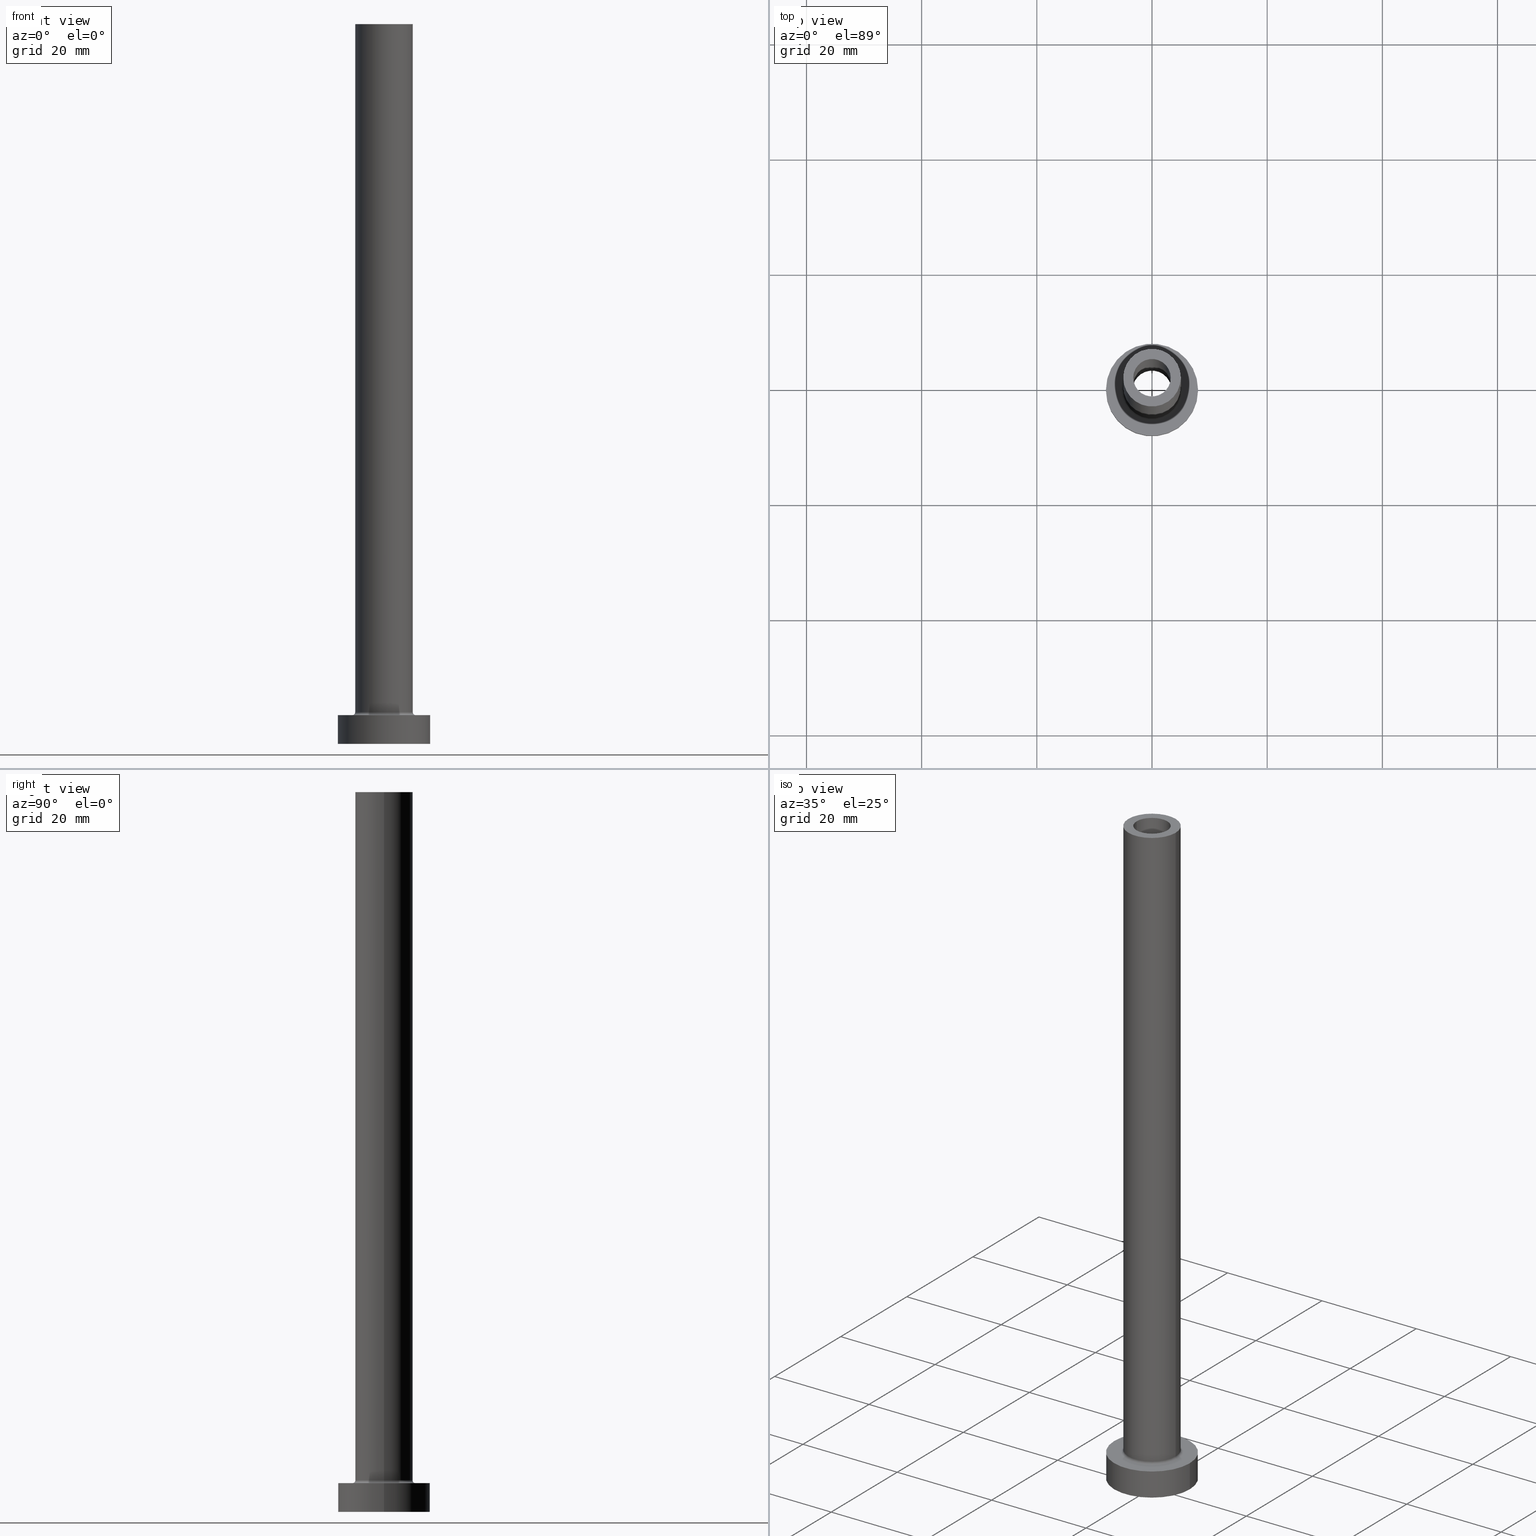
[diagram: canonical four-view strip — front | top / right | iso, engineering-drawing reading convention]
A machine part, canonical four-view strip (front | top / right | iso — engineering-drawing reading convention). The complete STEP part file that produces these views, byte-faithful:
ISO-10303-21;
HEADER;
FILE_DESCRIPTION (( 'STEP AP203' ),
    '1' );
FILE_NAME ('43da.STEP',
    '2023-02-13T14:03:32',
    ( '' ),
    ( '' ),
    'SwSTEP 2.0',
    'SolidWorks 2019',
    '' );
FILE_SCHEMA (( 'CONFIG_CONTROL_DESIGN' ));
ENDSEC;

DATA;
#1 = CYLINDRICAL_SURFACE ( 'NONE', #311, 8.000000000000000000 ) ;
#2 = ORIENTED_EDGE ( 'NONE', *, *, #31, .F. ) ;
#3 = DIRECTION ( 'NONE',  ( 1.000000000000000000, 0.000000000000000000, 0.000000000000000000 ) ) ;
#4 = CLOSED_SHELL ( 'NONE', ( #369, #194, #48, #175, #179, #340, #232, #296, #64, #58, #395, #149, #151, #241 ) ) ;
#5 = ORIENTED_EDGE ( 'NONE', *, *, #167, .F. ) ;
#6 = VERTEX_POINT ( 'NONE', #366 ) ;
#7 = DATE_TIME_ROLE ( 'creation_date' ) ;
#8 = DIRECTION ( 'NONE',  ( -0.000000000000000000, -0.000000000000000000, -1.000000000000000000 ) ) ;
#9 = FACE_OUTER_BOUND ( 'NONE', #137, .T. ) ;
#10 = DIRECTION ( 'NONE',  ( 1.000000000000000000, 0.000000000000000000, 0.000000000000000000 ) ) ;
#11 = EDGE_CURVE ( 'NONE', #438, #435, #459, .T. ) ;
#12 = DIRECTION ( 'NONE',  ( 0.000000000000000000, 0.000000000000000000, 1.000000000000000000 ) ) ;
#13 = CARTESIAN_POINT ( 'NONE',  ( 0.000000000000000000, 0.000000000000000000, 80.00000000000000000 ) ) ;
#14 = MANIFOLD_SOLID_BREP ( 'Odebrat vysunut�m4', #4 ) ;
#15 = FACE_OUTER_BOUND ( 'NONE', #71, .T. ) ;
#16 = LINE ( 'NONE', #300, #65 ) ;
#17 = AXIS2_PLACEMENT_3D ( 'NONE', #42, #306, #113 ) ;
#18 =( LENGTH_UNIT ( ) NAMED_UNIT ( * ) SI_UNIT ( .MILLI., .METRE. ) );
#19 = DIRECTION ( 'NONE',  ( -0.000000000000000000, -0.000000000000000000, -1.000000000000000000 ) ) ;
#20 = DIRECTION ( 'NONE',  ( -1.000000000000000000, 1.224646799147351482E-16, 0.000000000000000000 ) ) ;
#21 = CIRCLE ( 'NONE', #190, 3.399999999999999911 ) ;
#22 = CARTESIAN_POINT ( 'NONE',  ( 3.250000000000000444, 3.980102097228897245E-16, 125.0000000000000000 ) ) ;
#23 = CC_DESIGN_APPROVAL ( #111, ( #372 ) ) ;
#24 = ORIENTED_EDGE ( 'NONE', *, *, #430, .T. ) ;
#25 = CIRCLE ( 'NONE', #51, 3.250000000000000444 ) ;
#26 = EDGE_CURVE ( 'NONE', #174, #435, #39, .T. ) ;
#27 = VECTOR ( 'NONE', #8, 1000.000000000000000 ) ;
#28 = DIRECTION ( 'NONE',  ( -1.000000000000000000, 0.000000000000000000, 0.000000000000000000 ) ) ;
#29 = PLANE ( 'NONE',  #418 ) ;
#30 = EDGE_LOOP ( 'NONE', ( #133, #74, #24, #108 ) ) ;
#31 = EDGE_CURVE ( 'NONE', #280, #182, #247, .T. ) ;
#32 = DIRECTION ( 'NONE',  ( 1.000000000000000000, 0.000000000000000000, 0.000000000000000000 ) ) ;
#33 = DIRECTION ( 'NONE',  ( 1.000000000000000000, 0.000000000000000000, 0.000000000000000000 ) ) ;
#34 = CIRCLE ( 'NONE', #97, 3.250000000000000444 ) ;
#35 = LOCAL_TIME ( 15, 3, 32.00000000000000000, #257 ) ;
#36 = FACE_OUTER_BOUND ( 'NONE', #140, .T. ) ;
#37 = ORIENTED_EDGE ( 'NONE', *, *, #392, .T. ) ;
#38 = CARTESIAN_POINT ( 'NONE',  ( 0.000000000000000000, 0.000000000000000000, 125.0000000000000000 ) ) ;
#39 = LINE ( 'NONE', #291, #255 ) ;
#40 = ORIENTED_EDGE ( 'NONE', *, *, #26, .F. ) ;
#41 = AXIS2_PLACEMENT_3D ( 'NONE', #13, #450, #164 ) ;
#42 = CARTESIAN_POINT ( 'NONE',  ( 0.000000000000000000, 0.000000000000000000, 80.00000000000000000 ) ) ;
#43 = PRODUCT_DEFINITION_FORMATION_WITH_SPECIFIED_SOURCE ( 'LIBOVOLN�', '', #121, .NOT_KNOWN. ) ;
#44 = CARTESIAN_POINT ( 'NONE',  ( 0.000000000000000000, 0.000000000000000000, 0.000000000000000000 ) ) ;
#45 = DIRECTION ( 'NONE',  ( 0.000000000000000000, 0.000000000000000000, -1.000000000000000000 ) ) ;
#46 = DIRECTION ( 'NONE',  ( 1.000000000000000000, 0.000000000000000000, -0.000000000000000000 ) ) ;
#47 = CARTESIAN_POINT ( 'NONE',  ( 0.000000000000000000, 0.000000000000000000, 125.0000000000000000 ) ) ;
#48 = ADVANCED_FACE ( 'NONE', ( #109 ), #423, .F. ) ;
#49 = DIRECTION ( 'NONE',  ( 0.000000000000000000, 0.000000000000000000, 1.000000000000000000 ) ) ;
#50 = COORDINATED_UNIVERSAL_TIME_OFFSET ( 1, 0, .AHEAD. ) ;
#51 = AXIS2_PLACEMENT_3D ( 'NONE', #114, #228, #413 ) ;
#52 = CARTESIAN_POINT ( 'NONE',  ( 8.000000000000000000, 9.797174393178825657E-16, 0.000000000000000000 ) ) ;
#53 = DIRECTION ( 'NONE',  ( -0.000000000000000000, -0.000000000000000000, -1.000000000000000000 ) ) ;
#54 = CIRCLE ( 'NONE', #202, 5.500000000000000000 ) ;
#55 = PERSON_AND_ORGANIZATION ( #239, #242 ) ;
#56 = CARTESIAN_POINT ( 'NONE',  ( 0.000000000000000000, 0.000000000000000000, 5.000000000000000000 ) ) ;
#57 = DIRECTION ( 'NONE',  ( 1.000000000000000000, 0.000000000000000000, 0.000000000000000000 ) ) ;
#58 = ADVANCED_FACE ( 'NONE', ( #233, #298 ), #419, .T. ) ;
#59 = CARTESIAN_POINT ( 'NONE',  ( 0.000000000000000000, 0.000000000000000000, 125.0000000000000000 ) ) ;
#60 = CALENDAR_DATE ( 2023, 13, 2 ) ;
#61 = CC_DESIGN_PERSON_AND_ORGANIZATION_ASSIGNMENT ( #379, #404, ( #131 ) ) ;
#62 = PERSON_AND_ORGANIZATION_ROLE ( 'design_supplier' ) ;
#63 = EDGE_LOOP ( 'NONE', ( #185, #322, #219, #103 ) ) ;
#64 = ADVANCED_FACE ( 'NONE', ( #229 ), #333, .T. ) ;
#65 = VECTOR ( 'NONE', #19, 1000.000000000000000 ) ;
#66 = ORIENTED_EDGE ( 'NONE', *, *, #146, .F. ) ;
#67 = LOCAL_TIME ( 15, 3, 32.00000000000000000, #50 ) ;
#68 = ORIENTED_EDGE ( 'NONE', *, *, #411, .F. ) ;
#69 = ORIENTED_EDGE ( 'NONE', *, *, #365, .F. ) ;
#70 = FACE_OUTER_BOUND ( 'NONE', #30, .T. ) ;
#71 = EDGE_LOOP ( 'NONE', ( #68, #69, #294, #66 ) ) ;
#72 = AXIS2_PLACEMENT_3D ( 'NONE', #231, #383, #297 ) ;
#73 = DIRECTION ( 'NONE',  ( 1.000000000000000000, 0.000000000000000000, 0.000000000000000000 ) ) ;
#74 = ORIENTED_EDGE ( 'NONE', *, *, #86, .T. ) ;
#75 = DIRECTION ( 'NONE',  ( -1.000000000000000000, 0.000000000000000000, 0.000000000000000000 ) ) ;
#76 = ORIENTED_EDGE ( 'NONE', *, *, #31, .T. ) ;
#77 = PERSON_AND_ORGANIZATION_ROLE ( 'creator' ) ;
#78 = CARTESIAN_POINT ( 'NONE',  ( 3.250000000000000444, 3.980102097228897245E-16, 80.00000000000000000 ) ) ;
#79 = EDGE_LOOP ( 'NONE', ( #236, #461, #152, #107 ) ) ;
#80 = AXIS2_PLACEMENT_3D ( 'NONE', #354, #453, #28 ) ;
#81 = DATE_AND_TIME ( #374, #362 ) ;
#82 = CC_DESIGN_APPROVAL ( #183, ( #131 ) ) ;
#83 = PLANE ( 'NONE',  #388 ) ;
#84 = EDGE_CURVE ( 'NONE', #187, #456, #208, .T. ) ;
#85 = DIRECTION ( 'NONE',  ( -0.000000000000000000, -0.000000000000000000, -1.000000000000000000 ) ) ;
#86 = EDGE_CURVE ( 'NONE', #187, #212, #25, .T. ) ;
#87 = EDGE_CURVE ( 'NONE', #112, #458, #264, .T. ) ;
#88 = DIRECTION ( 'NONE',  ( 0.000000000000000000, 0.000000000000000000, 1.000000000000000000 ) ) ;
#89 = DIRECTION ( 'NONE',  ( 1.000000000000000000, 0.000000000000000000, 0.000000000000000000 ) ) ;
#90 = CYLINDRICAL_SURFACE ( 'NONE', #230, 5.000000000000000000 ) ;
#91 = APPROVAL_DATE_TIME ( #305, #183 ) ;
#92 = CIRCLE ( 'NONE', #310, 5.500000000000000000 ) ;
#93 = LINE ( 'NONE', #153, #275 ) ;
#94 = FACE_OUTER_BOUND ( 'NONE', #96, .T. ) ;
#95 = CARTESIAN_POINT ( 'NONE',  ( 0.000000000000000000, 0.000000000000000000, 5.000000000000000000 ) ) ;
#96 = EDGE_LOOP ( 'NONE', ( #406, #357 ) ) ;
#97 = AXIS2_PLACEMENT_3D ( 'NONE', #218, #367, #73 ) ;
#98 = ORIENTED_EDGE ( 'NONE', *, *, #87, .F. ) ;
#99 = APPROVAL_PERSON_ORGANIZATION ( #55, #432, #226 ) ;
#100 = CARTESIAN_POINT ( 'NONE',  ( 0.000000000000000000, 0.000000000000000000, 125.0000000000000000 ) ) ;
#101 = DIRECTION ( 'NONE',  ( 0.000000000000000000, 0.000000000000000000, 1.000000000000000000 ) ) ;
#102 = EDGE_LOOP ( 'NONE', ( #40, #394, #209, #245 ) ) ;
#103 = ORIENTED_EDGE ( 'NONE', *, *, #170, .F. ) ;
#104 = TOROIDAL_SURFACE ( 'NONE', #72, 5.500000000000000000, 0.5000000000000000000 ) ;
#105 = ORIENTED_EDGE ( 'NONE', *, *, #197, .T. ) ;
#106 = EDGE_CURVE ( 'NONE', #174, #454, #334, .T. ) ;
#107 = ORIENTED_EDGE ( 'NONE', *, *, #430, .F. ) ;
#108 = ORIENTED_EDGE ( 'NONE', *, *, #343, .F. ) ;
#109 = FACE_OUTER_BOUND ( 'NONE', #63, .T. ) ;
#110 = DATE_AND_TIME ( #201, #67 ) ;
#111 = APPROVAL ( #130, 'NEUR�EN�' ) ;
#112 = VERTEX_POINT ( 'NONE', #304 ) ;
#113 = DIRECTION ( 'NONE',  ( 1.000000000000000000, 0.000000000000000000, 0.000000000000000000 ) ) ;
#114 = CARTESIAN_POINT ( 'NONE',  ( 0.000000000000000000, 0.000000000000000000, 125.0000000000000000 ) ) ;
#115 = AXIS2_PLACEMENT_3D ( 'NONE', #206, #410, #57 ) ;
#116 = MECHANICAL_CONTEXT ( 'NONE', #420, 'mechanical' ) ;
#117 = DIRECTION ( 'NONE',  ( 0.000000000000000000, 0.000000000000000000, -1.000000000000000000 ) ) ;
#118 = AXIS2_PLACEMENT_3D ( 'NONE', #198, #253, #308 ) ;
#119 = CYLINDRICAL_SURFACE ( 'NONE', #391, 8.000000000000000000 ) ;
#120 = DIRECTION ( 'NONE',  ( 0.000000000000000000, 0.000000000000000000, 1.000000000000000000 ) ) ;
#121 = PRODUCT ( '43da', '43da', '', ( #116 ) ) ;
#122 = CARTESIAN_POINT ( 'NONE',  ( 5.000000000000000000, 6.123233995736766282E-16, 125.0000000000000000 ) ) ;
#123 = DIRECTION ( 'NONE',  ( -0.000000000000000000, -0.000000000000000000, -1.000000000000000000 ) ) ;
#124 = AXIS2_PLACEMENT_3D ( 'NONE', #436, #323, #3 ) ;
#125 = FACE_OUTER_BOUND ( 'NONE', #79, .T. ) ;
#126 = CARTESIAN_POINT ( 'NONE',  ( 5.500000000000000000, 0.000000000000000000, 5.500000000000005329 ) ) ;
#127 = CIRCLE ( 'NONE', #345, 8.000000000000000000 ) ;
#128 = DATE_AND_TIME ( #452, #425 ) ;
#129 = CARTESIAN_POINT ( 'NONE',  ( 0.000000000000000000, 0.000000000000000000, 0.000000000000000000 ) ) ;
#130 = APPROVAL_STATUS ( 'not_yet_approved' ) ;
#131 = PRODUCT_DEFINITION ( 'NEZN�M�', '', #43, #440 ) ;
#132 = DIRECTION ( 'NONE',  ( 1.000000000000000000, 0.000000000000000000, 0.000000000000000000 ) ) ;
#133 = ORIENTED_EDGE ( 'NONE', *, *, #84, .F. ) ;
#134 = ADVANCED_BREP_SHAPE_REPRESENTATION ( '43da', ( #14, #451 ), #266 ) ;
#135 = DIRECTION ( 'NONE',  ( 0.000000000000000000, 0.000000000000000000, 1.000000000000000000 ) ) ;
#136 = ORIENTED_EDGE ( 'NONE', *, *, #254, .T. ) ;
#137 = EDGE_LOOP ( 'NONE', ( #2, #145, #248, #5 ) ) ;
#138 = DIRECTION ( 'NONE',  ( 0.000000000000000000, 0.000000000000000000, -1.000000000000000000 ) ) ;
#139 = CIRCLE ( 'NONE', #238, 3.399999999999999911 ) ;
#140 = EDGE_LOOP ( 'NONE', ( #281, #189, #400, #270 ) ) ;
#141 = AXIS2_PLACEMENT_3D ( 'NONE', #56, #205, #331 ) ;
#142 = DIRECTION ( 'NONE',  ( 1.000000000000000000, 0.000000000000000000, -0.000000000000000000 ) ) ;
#143 = EDGE_LOOP ( 'NONE', ( #317, #221 ) ) ;
#144 = DIRECTION ( 'NONE',  ( -0.000000000000000000, -0.000000000000000000, -1.000000000000000000 ) ) ;
#145 = ORIENTED_EDGE ( 'NONE', *, *, #350, .T. ) ;
#146 = EDGE_CURVE ( 'NONE', #328, #6, #92, .T. ) ;
#147 = ORIENTED_EDGE ( 'NONE', *, *, #422, .F. ) ;
#148 = EDGE_CURVE ( 'NONE', #252, #431, #16, .T. ) ;
#149 = ADVANCED_FACE ( 'NONE', ( #442 ), #373, .F. ) ;
#150 = VECTOR ( 'NONE', #117, 1000.000000000000000 ) ;
#151 = ADVANCED_FACE ( 'NONE', ( #161, #94 ), #83, .F. ) ;
#152 = ORIENTED_EDGE ( 'NONE', *, *, #269, .F. ) ;
#153 = CARTESIAN_POINT ( 'NONE',  ( -3.399999999999999911, 0.000000000000000000, 89.61665222413704157 ) ) ;
#154 = CARTESIAN_POINT ( 'NONE',  ( 0.000000000000000000, 0.000000000000000000, 125.0000000000000000 ) ) ;
#155 = LINE ( 'NONE', #380, #150 ) ;
#156 = DIRECTION ( 'NONE',  ( -1.000000000000000000, 0.000000000000000000, 0.000000000000000000 ) ) ;
#157 = APPROVAL_STATUS ( 'not_yet_approved' ) ;
#158 = APPROVAL_PERSON_ORGANIZATION ( #235, #111, #387 ) ;
#159 = CC_DESIGN_APPROVAL ( #432, ( #43 ) ) ;
#160 = CARTESIAN_POINT ( 'NONE',  ( 3.250000000000000444, 3.980102097228897245E-16, 125.0000000000000000 ) ) ;
#161 = FACE_BOUND ( 'NONE', #143, .T. ) ;
#162 = PRODUCT_DEFINITION_SHAPE ( 'NONE', 'NONE',  #131 ) ;
#163 = DIRECTION ( 'NONE',  ( 0.000000000000000000, 0.000000000000000000, -1.000000000000000000 ) ) ;
#164 = DIRECTION ( 'NONE',  ( 1.000000000000000000, 0.000000000000000000, 0.000000000000000000 ) ) ;
#165 = CC_DESIGN_PERSON_AND_ORGANIZATION_ASSIGNMENT ( #382, #407, ( #121 ) ) ;
#166 = APPROVAL_PERSON_ORGANIZATION ( #262, #183, #299 ) ;
#167 = EDGE_CURVE ( 'NONE', #182, #314, #377, .T. ) ;
#168 = VERTEX_POINT ( 'NONE', #268 ) ;
#169 = SECURITY_CLASSIFICATION_LEVEL ( 'unclassified' ) ;
#170 = EDGE_CURVE ( 'NONE', #168, #6, #181, .T. ) ;
#171 = EDGE_LOOP ( 'NONE', ( #147, #352 ) ) ;
#172 = VECTOR ( 'NONE', #204, 1000.000000000000000 ) ;
#173 = DIRECTION ( 'NONE',  ( 0.000000000000000000, 0.000000000000000000, 1.000000000000000000 ) ) ;
#174 = VERTEX_POINT ( 'NONE', #332 ) ;
#175 = ADVANCED_FACE ( 'NONE', ( #9 ), #90, .T. ) ;
#176 = ORIENTED_EDGE ( 'NONE', *, *, #26, .T. ) ;
#177 = CARTESIAN_POINT ( 'NONE',  ( 0.000000000000000000, 0.000000000000000000, 0.000000000000000000 ) ) ;
#178 = EDGE_LOOP ( 'NONE', ( #368, #363, #105, #98 ) ) ;
#179 = ADVANCED_FACE ( 'NONE', ( #448 ), #119, .T. ) ;
#180 = CARTESIAN_POINT ( 'NONE',  ( 0.000000000000000000, 0.000000000000000000, 125.0000000000000000 ) ) ;
#181 = CIRCLE ( 'NONE', #325, 0.5000000000000004441 ) ;
#182 = VERTEX_POINT ( 'NONE', #341 ) ;
#183 = APPROVAL ( #157, 'NEUR�EN�' ) ;
#184 = CARTESIAN_POINT ( 'NONE',  ( 0.000000000000000000, 0.000000000000000000, 5.000000000000000000 ) ) ;
#185 = ORIENTED_EDGE ( 'NONE', *, *, #392, .F. ) ;
#186 = EDGE_CURVE ( 'NONE', #454, #174, #21, .T. ) ;
#187 = VERTEX_POINT ( 'NONE', #22 ) ;
#188 = DIRECTION ( 'NONE',  ( -0.000000000000000000, -0.000000000000000000, -1.000000000000000000 ) ) ;
#189 = ORIENTED_EDGE ( 'NONE', *, *, #403, .F. ) ;
#190 = AXIS2_PLACEMENT_3D ( 'NONE', #455, #101, #351 ) ;
#191 = AXIS2_PLACEMENT_3D ( 'NONE', #338, #303, #20 ) ;
#192 = CARTESIAN_POINT ( 'NONE',  ( -3.399999999999999911, 0.000000000000000000, 0.000000000000000000 ) ) ;
#193 = ORIENTED_EDGE ( 'NONE', *, *, #276, .T. ) ;
#194 = ADVANCED_FACE ( 'NONE', ( #312 ), #346, .F. ) ;
#195 = COORDINATED_UNIVERSAL_TIME_OFFSET ( 1, 0, .AHEAD. ) ;
#196 = DIRECTION ( 'NONE',  ( 0.000000000000000000, 0.000000000000000000, -1.000000000000000000 ) ) ;
#197 = EDGE_CURVE ( 'NONE', #431, #458, #240, .T. ) ;
#198 = CARTESIAN_POINT ( 'NONE',  ( 0.000000000000000000, 0.000000000000000000, 5.500000000000005329 ) ) ;
#199 = CC_DESIGN_DATE_AND_TIME_ASSIGNMENT ( #128, #344, ( #372 ) ) ;
#200 = DIRECTION ( 'NONE',  ( -1.000000000000000000, 0.000000000000000000, 0.000000000000000000 ) ) ;
#201 = CALENDAR_DATE ( 2023, 13, 2 ) ;
#202 = AXIS2_PLACEMENT_3D ( 'NONE', #361, #188, #434 ) ;
#203 = CARTESIAN_POINT ( 'NONE',  ( -3.399999999999999911, 0.000000000000000000, 80.00000000000000000 ) ) ;
#204 = DIRECTION ( 'NONE',  ( 0.000000000000000000, 0.000000000000000000, -1.000000000000000000 ) ) ;
#205 = DIRECTION ( 'NONE',  ( 0.000000000000000000, 0.000000000000000000, 1.000000000000000000 ) ) ;
#206 = CARTESIAN_POINT ( 'NONE',  ( 0.000000000000000000, 0.000000000000000000, 5.500000000000005329 ) ) ;
#207 = COORDINATED_UNIVERSAL_TIME_OFFSET ( 1, 0, .AHEAD. ) ;
#208 = LINE ( 'NONE', #160, #172 ) ;
#209 = ORIENTED_EDGE ( 'NONE', *, *, #378, .T. ) ;
#210 = AXIS2_PLACEMENT_3D ( 'NONE', #44, #217, #33 ) ;
#211 = EDGE_CURVE ( 'NONE', #212, #187, #342, .T. ) ;
#212 = VERTEX_POINT ( 'NONE', #277 ) ;
#213 = PERSON_AND_ORGANIZATION_ROLE ( 'classification_officer' ) ;
#214 = APPROVAL_DATE_TIME ( #349, #111 ) ;
#215 = EDGE_LOOP ( 'NONE', ( #355, #289 ) ) ;
#216 = CARTESIAN_POINT ( 'NONE',  ( 0.000000000000000000, 0.000000000000000000, 0.000000000000000000 ) ) ;
#217 = DIRECTION ( 'NONE',  ( -0.000000000000000000, -0.000000000000000000, -1.000000000000000000 ) ) ;
#218 = CARTESIAN_POINT ( 'NONE',  ( 0.000000000000000000, 0.000000000000000000, 80.00000000000000000 ) ) ;
#219 = ORIENTED_EDGE ( 'NONE', *, *, #279, .F. ) ;
#220 = DIRECTION ( 'NONE',  ( 0.000000000000000000, 0.000000000000000000, 1.000000000000000000 ) ) ;
#221 = ORIENTED_EDGE ( 'NONE', *, *, #343, .T. ) ;
#222 =( NAMED_UNIT ( * ) PLANE_ANGLE_UNIT ( ) SI_UNIT ( $, .RADIAN. ) );
#223 = EDGE_LOOP ( 'NONE', ( #278, #347 ) ) ;
#224 = CIRCLE ( 'NONE', #446, 8.000000000000000000 ) ;
#225 = CARTESIAN_POINT ( 'NONE',  ( 0.000000000000000000, 0.000000000000000000, 80.00000000000000000 ) ) ;
#226 = APPROVAL_ROLE ( '' ) ;
#227 = DIRECTION ( 'NONE',  ( 1.000000000000000000, 0.000000000000000000, 0.000000000000000000 ) ) ;
#228 = DIRECTION ( 'NONE',  ( 0.000000000000000000, 0.000000000000000000, 1.000000000000000000 ) ) ;
#229 = FACE_OUTER_BOUND ( 'NONE', #402, .T. ) ;
#230 = AXIS2_PLACEMENT_3D ( 'NONE', #154, #307, #156 ) ;
#231 = CARTESIAN_POINT ( 'NONE',  ( 0.000000000000000000, 0.000000000000000000, 5.500000000000005329 ) ) ;
#232 = ADVANCED_FACE ( 'NONE', ( #318, #358 ), #293, .T. ) ;
#233 = FACE_BOUND ( 'NONE', #223, .T. ) ;
#234 = CARTESIAN_POINT ( 'NONE',  ( 0.000000000000000000, 0.000000000000000000, 89.61665222413704157 ) ) ;
#235 = PERSON_AND_ORGANIZATION ( #239, #242 ) ;
#236 = ORIENTED_EDGE ( 'NONE', *, *, #211, .T. ) ;
#237 = APPLICATION_CONTEXT ( 'configuration controlled 3d designs of mechanical parts and assemblies' ) ;
#238 = AXIS2_PLACEMENT_3D ( 'NONE', #216, #283, #32 ) ;
#239 = PERSON ( 'NEUR�EN�', 'NEUR�EN�', 'NEUR�EN�', ('NEUR�EN�'), ('NEUR�EN�'), ('NEUR�EN�') ) ;
#240 = CIRCLE ( 'NONE', #282, 8.000000000000000000 ) ;
#241 = ADVANCED_FACE ( 'NONE', ( #70 ), #244, .F. ) ;
#242 = ORGANIZATION ( 'NEUR�EN�', 'NEUR�EN�', '' ) ;
#243 = EDGE_LOOP ( 'NONE', ( #193, #76 ) ) ;
#244 = CYLINDRICAL_SURFACE ( 'NONE', #409, 3.250000000000000444 ) ;
#245 = ORIENTED_EDGE ( 'NONE', *, *, #11, .T. ) ;
#246 = CARTESIAN_POINT ( 'NONE',  ( -3.250000000000000444, 0.000000000000000000, 80.00000000000000000 ) ) ;
#247 = CIRCLE ( 'NONE', #124, 5.000000000000000000 ) ;
#248 = ORIENTED_EDGE ( 'NONE', *, *, #365, .T. ) ;
#249 = DIRECTION ( 'NONE',  ( 1.000000000000000000, 0.000000000000000000, -0.000000000000000000 ) ) ;
#250 = PERSON_AND_ORGANIZATION ( #239, #242 ) ;
#251 = DIRECTION ( 'NONE',  ( 1.000000000000000000, 0.000000000000000000, 0.000000000000000000 ) ) ;
#252 = VERTEX_POINT ( 'NONE', #401 ) ;
#253 = DIRECTION ( 'NONE',  ( 0.000000000000000000, 0.000000000000000000, 1.000000000000000000 ) ) ;
#254 = EDGE_CURVE ( 'NONE', #435, #438, #139, .T. ) ;
#255 = VECTOR ( 'NONE', #287, 1000.000000000000000 ) ;
#256 = CIRCLE ( 'NONE', #118, 5.000000000000000000 ) ;
#257 = COORDINATED_UNIVERSAL_TIME_OFFSET ( 1, 0, .AHEAD. ) ;
#258 = CARTESIAN_POINT ( 'NONE',  ( 0.000000000000000000, 0.000000000000000000, 5.000000000000000000 ) ) ;
#259 = CARTESIAN_POINT ( 'NONE',  ( 0.000000000000000000, 0.000000000000000000, 5.000000000000000000 ) ) ;
#260 = CALENDAR_DATE ( 2023, 13, 2 ) ;
#261 = DIRECTION ( 'NONE',  ( -1.000000000000000000, 0.000000000000000000, 0.000000000000000000 ) ) ;
#262 = PERSON_AND_ORGANIZATION ( #239, #242 ) ;
#263 = CARTESIAN_POINT ( 'NONE',  ( 0.000000000000000000, 0.000000000000000000, 5.500000000000005329 ) ) ;
#264 = LINE ( 'NONE', #385, #265 ) ;
#265 = VECTOR ( 'NONE', #53, 1000.000000000000000 ) ;
#266 =( GEOMETRIC_REPRESENTATION_CONTEXT ( 3 ) GLOBAL_UNCERTAINTY_ASSIGNED_CONTEXT ( ( #405 ) ) GLOBAL_UNIT_ASSIGNED_CONTEXT ( ( #18, #222, #337 ) ) REPRESENTATION_CONTEXT ( 'NONE', 'WORKASPACE' ) );
#267 = CARTESIAN_POINT ( 'NONE',  ( 3.399999999999999911, 4.163799117101000559E-16, 0.000000000000000000 ) ) ;
#268 = CARTESIAN_POINT ( 'NONE',  ( 5.000000000000000000, 6.123233995736766282E-16, 5.500000000000005329 ) ) ;
#269 = EDGE_CURVE ( 'NONE', #324, #456, #34, .T. ) ;
#270 = ORIENTED_EDGE ( 'NONE', *, *, #422, .T. ) ;
#271 = SHAPE_DEFINITION_REPRESENTATION ( #162, #134 ) ;
#272 = CC_DESIGN_DATE_AND_TIME_ASSIGNMENT ( #110, #7, ( #131 ) ) ;
#273 = AXIS2_PLACEMENT_3D ( 'NONE', #59, #120, #46 ) ;
#274 = AXIS2_PLACEMENT_3D ( 'NONE', #180, #437, #251 ) ;
#275 = VECTOR ( 'NONE', #45, 1000.000000000000000 ) ;
#276 = EDGE_CURVE ( 'NONE', #182, #280, #360, .T. ) ;
#277 = CARTESIAN_POINT ( 'NONE',  ( -3.250000000000000444, 0.000000000000000000, 125.0000000000000000 ) ) ;
#278 = ORIENTED_EDGE ( 'NONE', *, *, #211, .F. ) ;
#279 = EDGE_CURVE ( 'NONE', #6, #328, #54, .T. ) ;
#280 = VERTEX_POINT ( 'NONE', #290 ) ;
#281 = ORIENTED_EDGE ( 'NONE', *, *, #148, .F. ) ;
#282 = AXIS2_PLACEMENT_3D ( 'NONE', #129, #135, #132 ) ;
#283 = DIRECTION ( 'NONE',  ( -0.000000000000000000, -0.000000000000000000, -1.000000000000000000 ) ) ;
#284 = CC_DESIGN_SECURITY_CLASSIFICATION ( #372, ( #43 ) ) ;
#285 = ORIENTED_EDGE ( 'NONE', *, *, #186, .T. ) ;
#286 = CARTESIAN_POINT ( 'NONE',  ( -5.000000000000000000, 0.000000000000000000, 5.500000000000005329 ) ) ;
#287 = DIRECTION ( 'NONE',  ( 0.000000000000000000, 0.000000000000000000, -1.000000000000000000 ) ) ;
#288 = DIRECTION ( 'NONE',  ( -1.000000000000000000, 0.000000000000000000, 0.000000000000000000 ) ) ;
#289 = ORIENTED_EDGE ( 'NONE', *, *, #364, .T. ) ;
#290 = CARTESIAN_POINT ( 'NONE',  ( 5.000000000000000000, 6.123233995736766282E-16, 125.0000000000000000 ) ) ;
#291 = CARTESIAN_POINT ( 'NONE',  ( 3.399999999999999911, 4.163799117101000559E-16, 89.61665222413704157 ) ) ;
#292 = CARTESIAN_POINT ( 'NONE',  ( 0.000000000000000000, 0.000000000000000000, 0.000000000000000000 ) ) ;
#293 = PLANE ( 'NONE',  #315 ) ;
#294 = ORIENTED_EDGE ( 'NONE', *, *, #170, .T. ) ;
#295 = APPLICATION_PROTOCOL_DEFINITION ( 'international standard', 'config_control_design', 1994, #420 ) ;
#296 = ADVANCED_FACE ( 'NONE', ( #356, #319 ), #29, .F. ) ;
#297 = DIRECTION ( 'NONE',  ( 1.000000000000000000, 0.000000000000000000, 0.000000000000000000 ) ) ;
#298 = FACE_OUTER_BOUND ( 'NONE', #243, .T. ) ;
#299 = APPROVAL_ROLE ( '' ) ;
#300 = CARTESIAN_POINT ( 'NONE',  ( 8.000000000000000000, 9.797174393178825657E-16, 5.000000000000000000 ) ) ;
#301 = VECTOR ( 'NONE', #85, 1000.000000000000000 ) ;
#302 = APPROVAL_DATE_TIME ( #81, #432 ) ;
#303 = DIRECTION ( 'NONE',  ( 1.224646799147353207E-16, 1.000000000000000000, -0.000000000000000000 ) ) ;
#304 = CARTESIAN_POINT ( 'NONE',  ( -8.000000000000000000, 0.000000000000000000, 5.000000000000000000 ) ) ;
#305 = DATE_AND_TIME ( #260, #35 ) ;
#306 = DIRECTION ( 'NONE',  ( 0.000000000000000000, 0.000000000000000000, 1.000000000000000000 ) ) ;
#307 = DIRECTION ( 'NONE',  ( -0.000000000000000000, -0.000000000000000000, -1.000000000000000000 ) ) ;
#308 = DIRECTION ( 'NONE',  ( 1.000000000000000000, 0.000000000000000000, 0.000000000000000000 ) ) ;
#309 = CARTESIAN_POINT ( 'NONE',  ( -5.000000000000000000, 0.000000000000000000, 125.0000000000000000 ) ) ;
#310 = AXIS2_PLACEMENT_3D ( 'NONE', #95, #336, #339 ) ;
#311 = AXIS2_PLACEMENT_3D ( 'NONE', #321, #144, #288 ) ;
#312 = FACE_OUTER_BOUND ( 'NONE', #421, .T. ) ;
#313 = COORDINATED_UNIVERSAL_TIME_OFFSET ( 1, 0, .AHEAD. ) ;
#314 = VERTEX_POINT ( 'NONE', #286 ) ;
#315 = AXIS2_PLACEMENT_3D ( 'NONE', #184, #220, #249 ) ;
#316 = AXIS2_PLACEMENT_3D ( 'NONE', #47, #163, #416 ) ;
#317 = ORIENTED_EDGE ( 'NONE', *, *, #269, .T. ) ;
#318 = FACE_BOUND ( 'NONE', #398, .T. ) ;
#319 = FACE_OUTER_BOUND ( 'NONE', #171, .T. ) ;
#320 = CIRCLE ( 'NONE', #389, 5.000000000000000000 ) ;
#321 = CARTESIAN_POINT ( 'NONE',  ( 0.000000000000000000, 0.000000000000000000, 5.000000000000000000 ) ) ;
#322 = ORIENTED_EDGE ( 'NONE', *, *, #411, .T. ) ;
#323 = DIRECTION ( 'NONE',  ( 0.000000000000000000, 0.000000000000000000, 1.000000000000000000 ) ) ;
#324 = VERTEX_POINT ( 'NONE', #246 ) ;
#325 = AXIS2_PLACEMENT_3D ( 'NONE', #126, #447, #196 ) ;
#326 = ORIENTED_EDGE ( 'NONE', *, *, #11, .F. ) ;
#327 = CIRCLE ( 'NONE', #17, 3.250000000000000444 ) ;
#328 = VERTEX_POINT ( 'NONE', #397 ) ;
#329 = PRODUCT_RELATED_PRODUCT_CATEGORY ( 'detail', '', ( #121 ) ) ;
#330 = ORIENTED_EDGE ( 'NONE', *, *, #378, .F. ) ;
#331 = DIRECTION ( 'NONE',  ( 1.000000000000000000, 0.000000000000000000, 0.000000000000000000 ) ) ;
#332 = CARTESIAN_POINT ( 'NONE',  ( 3.399999999999999911, 4.163799117101000559E-16, 80.00000000000000000 ) ) ;
#333 = CYLINDRICAL_SURFACE ( 'NONE', #399, 5.000000000000000000 ) ;
#334 = CIRCLE ( 'NONE', #41, 3.399999999999999911 ) ;
#335 = CARTESIAN_POINT ( 'NONE',  ( -8.000000000000000000, 0.000000000000000000, 0.000000000000000000 ) ) ;
#336 = DIRECTION ( 'NONE',  ( -0.000000000000000000, -0.000000000000000000, -1.000000000000000000 ) ) ;
#337 =( NAMED_UNIT ( * ) SI_UNIT ( $, .STERADIAN. ) SOLID_ANGLE_UNIT ( ) );
#338 = CARTESIAN_POINT ( 'NONE',  ( -5.500000000000000000, 6.735557395310442023E-16, 5.500000000000005329 ) ) ;
#339 = DIRECTION ( 'NONE',  ( 1.000000000000000000, 0.000000000000000000, 0.000000000000000000 ) ) ;
#340 = ADVANCED_FACE ( 'NONE', ( #36 ), #1, .T. ) ;
#341 = CARTESIAN_POINT ( 'NONE',  ( -5.000000000000000000, 0.000000000000000000, 125.0000000000000000 ) ) ;
#342 = CIRCLE ( 'NONE', #444, 3.250000000000000444 ) ;
#343 = EDGE_CURVE ( 'NONE', #456, #324, #327, .T. ) ;
#344 = DATE_TIME_ROLE ( 'classification_date' ) ;
#345 = AXIS2_PLACEMENT_3D ( 'NONE', #258, #443, #227 ) ;
#346 = CYLINDRICAL_SURFACE ( 'NONE', #80, 3.399999999999999911 ) ;
#347 = ORIENTED_EDGE ( 'NONE', *, *, #86, .F. ) ;
#348 = ORIENTED_EDGE ( 'NONE', *, *, #167, .T. ) ;
#349 = DATE_AND_TIME ( #60, #429 ) ;
#350 = EDGE_CURVE ( 'NONE', #280, #168, #414, .T. ) ;
#351 = DIRECTION ( 'NONE',  ( 1.000000000000000000, 0.000000000000000000, 0.000000000000000000 ) ) ;
#352 = ORIENTED_EDGE ( 'NONE', *, *, #197, .F. ) ;
#353 = CIRCLE ( 'NONE', #141, 8.000000000000000000 ) ;
#354 = CARTESIAN_POINT ( 'NONE',  ( 0.000000000000000000, 0.000000000000000000, 89.61665222413704157 ) ) ;
#355 = ORIENTED_EDGE ( 'NONE', *, *, #403, .T. ) ;
#356 = FACE_BOUND ( 'NONE', #359, .T. ) ;
#357 = ORIENTED_EDGE ( 'NONE', *, *, #106, .F. ) ;
#358 = FACE_OUTER_BOUND ( 'NONE', #215, .T. ) ;
#359 = EDGE_LOOP ( 'NONE', ( #326, #390 ) ) ;
#360 = CIRCLE ( 'NONE', #274, 5.000000000000000000 ) ;
#361 = CARTESIAN_POINT ( 'NONE',  ( 0.000000000000000000, 0.000000000000000000, 5.000000000000000000 ) ) ;
#362 = LOCAL_TIME ( 15, 3, 32.00000000000000000, #195 ) ;
#363 = ORIENTED_EDGE ( 'NONE', *, *, #148, .T. ) ;
#364 = EDGE_CURVE ( 'NONE', #252, #112, #127, .T. ) ;
#365 = EDGE_CURVE ( 'NONE', #168, #314, #320, .T. ) ;
#366 = CARTESIAN_POINT ( 'NONE',  ( 5.500000000000000000, 0.000000000000000000, 5.000000000000002665 ) ) ;
#367 = DIRECTION ( 'NONE',  ( 0.000000000000000000, 0.000000000000000000, 1.000000000000000000 ) ) ;
#368 = ORIENTED_EDGE ( 'NONE', *, *, #364, .F. ) ;
#369 = ADVANCED_FACE ( 'NONE', ( #125 ), #408, .F. ) ;
#370 = PERSON_AND_ORGANIZATION ( #239, #242 ) ;
#371 = ORIENTED_EDGE ( 'NONE', *, *, #350, .F. ) ;
#372 = SECURITY_CLASSIFICATION ( '', '', #169 ) ;
#373 = CYLINDRICAL_SURFACE ( 'NONE', #428, 3.399999999999999911 ) ;
#374 = CALENDAR_DATE ( 2023, 13, 2 ) ;
#375 = DIRECTION ( 'NONE',  ( 1.000000000000000000, 0.000000000000000000, 0.000000000000000000 ) ) ;
#376 = CC_DESIGN_PERSON_AND_ORGANIZATION_ASSIGNMENT ( #426, #213, ( #372 ) ) ;
#377 = LINE ( 'NONE', #309, #301 ) ;
#378 = EDGE_CURVE ( 'NONE', #454, #438, #93, .T. ) ;
#379 = PERSON_AND_ORGANIZATION ( #239, #242 ) ;
#380 = CARTESIAN_POINT ( 'NONE',  ( -3.250000000000000444, 0.000000000000000000, 125.0000000000000000 ) ) ;
#381 = DIRECTION ( 'NONE',  ( -0.000000000000000000, -0.000000000000000000, -1.000000000000000000 ) ) ;
#382 = PERSON_AND_ORGANIZATION ( #239, #242 ) ;
#383 = DIRECTION ( 'NONE',  ( 0.000000000000000000, 0.000000000000000000, 1.000000000000000000 ) ) ;
#384 = CARTESIAN_POINT ( 'NONE',  ( 0.000000000000000000, 0.000000000000000000, 125.0000000000000000 ) ) ;
#385 = CARTESIAN_POINT ( 'NONE',  ( -8.000000000000000000, 0.000000000000000000, 5.000000000000000000 ) ) ;
#386 = CC_DESIGN_PERSON_AND_ORGANIZATION_ASSIGNMENT ( #250, #77, ( #43 ) ) ;
#387 = APPROVAL_ROLE ( '' ) ;
#388 = AXIS2_PLACEMENT_3D ( 'NONE', #225, #49, #415 ) ;
#389 = AXIS2_PLACEMENT_3D ( 'NONE', #263, #441, #375 ) ;
#390 = ORIENTED_EDGE ( 'NONE', *, *, #254, .F. ) ;
#391 = AXIS2_PLACEMENT_3D ( 'NONE', #259, #123, #200 ) ;
#392 = EDGE_CURVE ( 'NONE', #314, #168, #256, .T. ) ;
#393 = CIRCLE ( 'NONE', #191, 0.5000000000000004441 ) ;
#394 = ORIENTED_EDGE ( 'NONE', *, *, #106, .T. ) ;
#395 = ADVANCED_FACE ( 'NONE', ( #15 ), #104, .F. ) ;
#396 = ORIENTED_EDGE ( 'NONE', *, *, #279, .T. ) ;
#397 = CARTESIAN_POINT ( 'NONE',  ( -5.500000000000000000, 6.735557395310442023E-16, 5.000000000000002665 ) ) ;
#398 = EDGE_LOOP ( 'NONE', ( #396, #427 ) ) ;
#399 = AXIS2_PLACEMENT_3D ( 'NONE', #384, #381, #261 ) ;
#400 = ORIENTED_EDGE ( 'NONE', *, *, #87, .T. ) ;
#401 = CARTESIAN_POINT ( 'NONE',  ( 8.000000000000000000, 9.797174393178825657E-16, 5.000000000000000000 ) ) ;
#402 = EDGE_LOOP ( 'NONE', ( #371, #433, #348, #37 ) ) ;
#403 = EDGE_CURVE ( 'NONE', #112, #252, #353, .T. ) ;
#404 = PERSON_AND_ORGANIZATION_ROLE ( 'creator' ) ;
#405 = UNCERTAINTY_MEASURE_WITH_UNIT (LENGTH_MEASURE( 1.000000000000000082E-05 ), #18, 'distance_accuracy_value', 'NONE');
#406 = ORIENTED_EDGE ( 'NONE', *, *, #186, .F. ) ;
#407 = PERSON_AND_ORGANIZATION_ROLE ( 'design_owner' ) ;
#408 = CYLINDRICAL_SURFACE ( 'NONE', #316, 3.250000000000000444 ) ;
#409 = AXIS2_PLACEMENT_3D ( 'NONE', #38, #138, #75 ) ;
#410 = DIRECTION ( 'NONE',  ( 0.000000000000000000, 0.000000000000000000, 1.000000000000000000 ) ) ;
#411 = EDGE_CURVE ( 'NONE', #314, #328, #393, .T. ) ;
#412 = APPROVAL_STATUS ( 'not_yet_approved' ) ;
#413 = DIRECTION ( 'NONE',  ( 1.000000000000000000, 0.000000000000000000, 0.000000000000000000 ) ) ;
#414 = LINE ( 'NONE', #122, #27 ) ;
#415 = DIRECTION ( 'NONE',  ( 1.000000000000000000, 0.000000000000000000, -0.000000000000000000 ) ) ;
#416 = DIRECTION ( 'NONE',  ( -1.000000000000000000, 0.000000000000000000, 0.000000000000000000 ) ) ;
#417 = DIRECTION ( 'NONE',  ( 0.000000000000000000, 0.000000000000000000, -1.000000000000000000 ) ) ;
#418 = AXIS2_PLACEMENT_3D ( 'NONE', #177, #460, #142 ) ;
#419 = PLANE ( 'NONE',  #273 ) ;
#420 = APPLICATION_CONTEXT ( 'configuration controlled 3d designs of mechanical parts and assemblies' ) ;
#421 = EDGE_LOOP ( 'NONE', ( #285, #176, #136, #330 ) ) ;
#422 = EDGE_CURVE ( 'NONE', #458, #431, #224, .T. ) ;
#423 = TOROIDAL_SURFACE ( 'NONE', #115, 5.500000000000000000, 0.5000000000000000000 ) ;
#424 = CC_DESIGN_PERSON_AND_ORGANIZATION_ASSIGNMENT ( #370, #62, ( #43 ) ) ;
#425 = LOCAL_TIME ( 15, 3, 32.00000000000000000, #207 ) ;
#426 = PERSON_AND_ORGANIZATION ( #239, #242 ) ;
#427 = ORIENTED_EDGE ( 'NONE', *, *, #146, .T. ) ;
#428 = AXIS2_PLACEMENT_3D ( 'NONE', #234, #417, #445 ) ;
#429 = LOCAL_TIME ( 15, 3, 32.00000000000000000, #313 ) ;
#430 = EDGE_CURVE ( 'NONE', #212, #324, #155, .T. ) ;
#431 = VERTEX_POINT ( 'NONE', #52 ) ;
#432 = APPROVAL ( #412, 'NEUR�EN�' ) ;
#433 = ORIENTED_EDGE ( 'NONE', *, *, #276, .F. ) ;
#434 = DIRECTION ( 'NONE',  ( 1.000000000000000000, 0.000000000000000000, 0.000000000000000000 ) ) ;
#435 = VERTEX_POINT ( 'NONE', #267 ) ;
#436 = CARTESIAN_POINT ( 'NONE',  ( 0.000000000000000000, 0.000000000000000000, 125.0000000000000000 ) ) ;
#437 = DIRECTION ( 'NONE',  ( 0.000000000000000000, 0.000000000000000000, 1.000000000000000000 ) ) ;
#438 = VERTEX_POINT ( 'NONE', #192 ) ;
#439 = APPLICATION_PROTOCOL_DEFINITION ( 'international standard', 'config_control_design', 1994, #237 ) ;
#440 = DESIGN_CONTEXT ( 'detailed design', #237, 'design' ) ;
#441 = DIRECTION ( 'NONE',  ( 0.000000000000000000, 0.000000000000000000, 1.000000000000000000 ) ) ;
#442 = FACE_OUTER_BOUND ( 'NONE', #102, .T. ) ;
#443 = DIRECTION ( 'NONE',  ( 0.000000000000000000, 0.000000000000000000, 1.000000000000000000 ) ) ;
#444 = AXIS2_PLACEMENT_3D ( 'NONE', #100, #173, #457 ) ;
#445 = DIRECTION ( 'NONE',  ( -1.000000000000000000, 0.000000000000000000, 0.000000000000000000 ) ) ;
#446 = AXIS2_PLACEMENT_3D ( 'NONE', #449, #12, #89 ) ;
#447 = DIRECTION ( 'NONE',  ( 0.000000000000000000, -1.000000000000000000, 0.000000000000000000 ) ) ;
#448 = FACE_OUTER_BOUND ( 'NONE', #178, .T. ) ;
#449 = CARTESIAN_POINT ( 'NONE',  ( 0.000000000000000000, 0.000000000000000000, 0.000000000000000000 ) ) ;
#450 = DIRECTION ( 'NONE',  ( 0.000000000000000000, 0.000000000000000000, 1.000000000000000000 ) ) ;
#451 = AXIS2_PLACEMENT_3D ( 'NONE', #292, #88, #10 ) ;
#452 = CALENDAR_DATE ( 2023, 13, 2 ) ;
#453 = DIRECTION ( 'NONE',  ( 0.000000000000000000, 0.000000000000000000, -1.000000000000000000 ) ) ;
#454 = VERTEX_POINT ( 'NONE', #203 ) ;
#455 = CARTESIAN_POINT ( 'NONE',  ( 0.000000000000000000, 0.000000000000000000, 80.00000000000000000 ) ) ;
#456 = VERTEX_POINT ( 'NONE', #78 ) ;
#457 = DIRECTION ( 'NONE',  ( 1.000000000000000000, 0.000000000000000000, 0.000000000000000000 ) ) ;
#458 = VERTEX_POINT ( 'NONE', #335 ) ;
#459 = CIRCLE ( 'NONE', #210, 3.399999999999999911 ) ;
#460 = DIRECTION ( 'NONE',  ( 0.000000000000000000, 0.000000000000000000, 1.000000000000000000 ) ) ;
#461 = ORIENTED_EDGE ( 'NONE', *, *, #84, .T. ) ;
ENDSEC;
END-ISO-10303-21;
